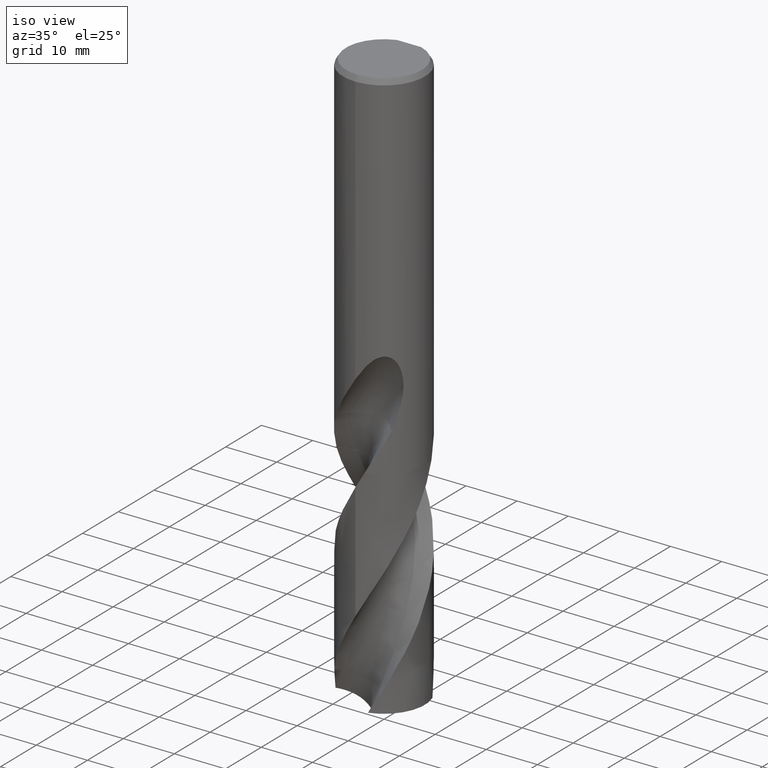
[diagram: clean part render]
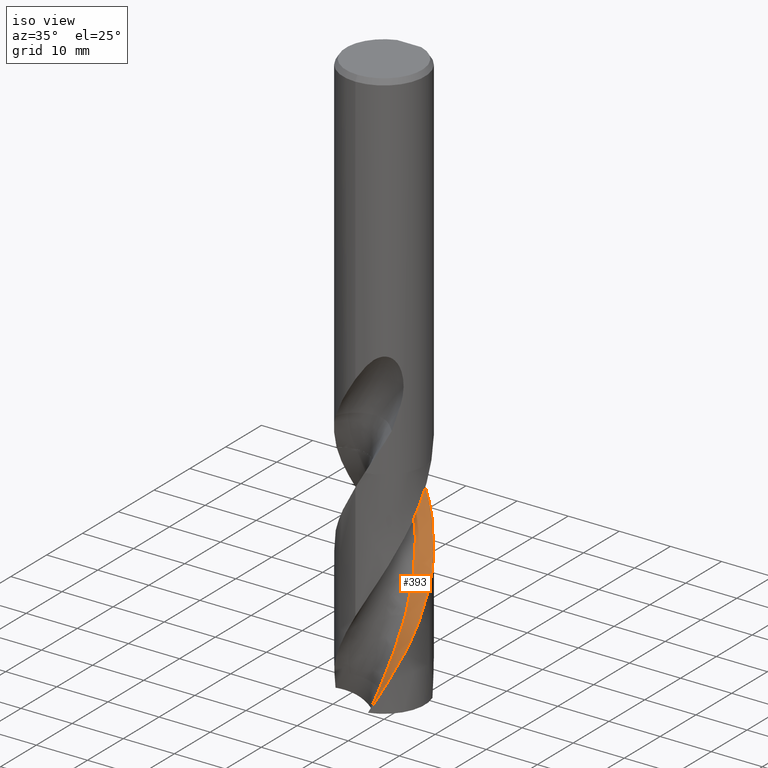
[diagram: same view with one face highlighted and labeled with its STEP entity id]
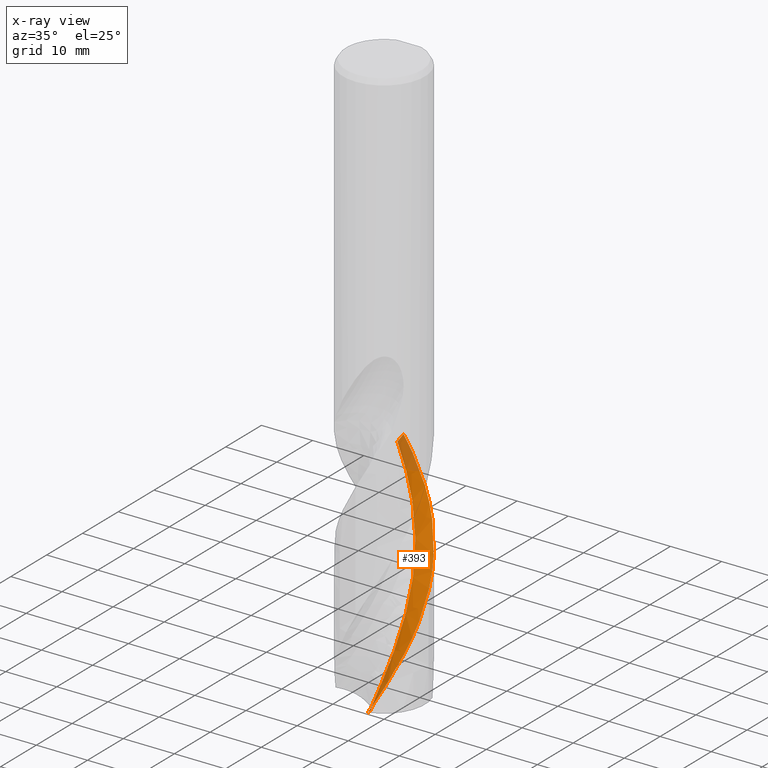
[diagram: x-ray of the same camera — body ghosted, the highlighted face saturated]
A machine part, iso view. The second image highlights one B-rep face of the part: STEP entity #393.
The next image is the same camera in x-ray: the body ghosted, the highlighted face saturated — about 10% of this face is hidden behind the body in this view.
In plain terms, the highlighted face is a freeform B-spline surface patch.
Its self-contained STEP definition (entity closure, byte-faithful):
#295=EDGE_CURVE('',#629,#737,#812,.T.);
#365=EDGE_CURVE('',#729,#629,#890,.T.);
#393=ADVANCED_FACE('',(#921),#922,.F.);
#481=VERTEX_POINT('',#1018);
#485=VERTEX_POINT('',#1023);
#507=EDGE_CURVE('',#485,#729,#1046,.T.);
#537=EDGE_CURVE('',#481,#485,#1077,.T.);
#629=VERTEX_POINT('',#1178);
#639=EDGE_CURVE('',#481,#737,#1188,.T.);
#729=VERTEX_POINT('',#1286);
#737=VERTEX_POINT('',#1295);
#812=B_SPLINE_CURVE_WITH_KNOTS('',3,(#1379,#1380,#1381,#1382),.UNSPECIFIED.,.F.,.F.,(4,4),(0.0,6.93095966099131),.UNSPECIFIED.);
#890=B_SPLINE_CURVE_WITH_KNOTS('',3,(#2726,#2727,#2728,#2729,#2730,#2731,#2732,#2733,#2734,#2735,#2736,#2737,#2738,#2739,#2740,#2741,#2742,#2743,#2744,#2745,#2746,#2747,#2748,#2749,#2750,#2751,#2752,#2753,#2754,#2755,#2756,#2757,#2758,#2759,#2760,#2761,#2762,#2763,#2764,#2765,#2766,#2767,#2768,#2769,#2770,#2771,#2772,#2773,#2774,#2775,#2776,#2777),.UNSPECIFIED.,.F.,.F.,(4,2,2,2,2,2,2,2,2,2,2,2,2,2,2,2,2,2,2,2,2,2,2,2,2,4),(0.0,1.27051730286432,3.96646854480239,5.51157217282943,7.05404440528282,10.1371378918844,10.3290807501614,13.4034358372347,14.9439217900769,17.8075973009075,17.9859906336772,20.8432027542659,22.2753112592827,25.1362857660209,25.8509122014461,28.7245608353295,29.9842632062922,32.3474459365253,34.4169737224137,36.2289984814503,37.8143179372547,40.5895410475255,41.1098273184683,43.0617453367982,45.9921869063749,48.9211548549457),.UNSPECIFIED.);
#921=FACE_OUTER_BOUND('',#3036,.T.);
#922=B_SPLINE_SURFACE_WITH_KNOTS('',3,3,((#3037,#3038,#3039,#3040,#3041,#3042,#3043,#3044,#3045,#3046,#3047,#3048,#3049,#3050,#3051,#3052,#3053,#3054,#3055,#3056,#3057,#3058,#3059,#3060,#3061,#3062,#3063,#3064,#3065,#3066,#3067,#3068,#3069,#3070,#3071,#3072,#3073,#3074,#3075,#3076,#3077,#3078,#3079,#3080),(#3081,#3082,#3083,#3084,#3085,#3086,#3087,#3088,#3089,#3090,#3091,#3092,#3093,#3094,#3095,#3096,#3097,#3098,#3099,#3100,#3101,#3102,#3103,#3104,#3105,#3106,#3107,#3108,#3109,#3110,#3111,#3112,#3113,#3114,#3115,#3116,#3117,#3118,#3119,#3120,#3121,#3122,#3123,#3124),(#3125,#3126,#3127,#3128,#3129,#3130,#3131,#3132,#3133,#3134,#3135,#3136,#3137,#3138,#3139,#3140,#3141,#3142,#3143,#3144,#3145,#3146,#3147,#3148,#3149,#3150,#3151,#3152,#3153,#3154,#3155,#3156,#3157,#3158,#3159,#3160,#3161,#3162,#3163,#3164,#3165,#3166,#3167,#3168),(#3169,#3170,#3171,#3172,#3173,#3174,#3175,#3176,#3177,#3178,#3179,#3180,#3181,#3182,#3183,#3184,#3185,#3186,#3187,#3188,#3189,#3190,#3191,#3192,#3193,#3194,#3195,#3196,#3197,#3198,#3199,#3200,#3201,#3202,#3203,#3204,#3205,#3206,#3207,#3208,#3209,#3210,#3211,#3212)),.UNSPECIFIED.,.F.,.F.,.F.,(4,4),(4,1,2,2,2,2,2,2,2,2,2,2,2,2,2,2,2,2,2,2,1,2,4),(-5.42813949171161E-015,10.66666667),(0.0,1.06461880689697,2.12923761379393,3.1938564206909,4.25847522758786,6.38771284138179,8.51695045517572,10.6461880689697,12.7754256827636,17.0339009103514,21.2923761379393,25.5508513655272,29.809326593115,34.0678018207029,38.3262770482907,42.5847522758786,46.8432275034665,51.1017027310543,55.3601779586422,59.61865318623,63.8771284138179,66.0063660276118,68.1356036414058),.UNSPECIFIED.);
#1018=CARTESIAN_POINT('',(-0.841475625402543,4.95653405970587,-69.805));
#1023=CARTESIAN_POINT('',(-1.67697244394199,7.82215850142622,-69.8049999999999));
#1046=B_SPLINE_CURVE_WITH_KNOTS('',3,(#3846,#3847,#3848,#3849,#3850,#3851,#3852,#3853,#3854,#3855,#3856,#3857,#3858,#3859,#3860,#3861,#3862,#3863,#3864,#3865,#3866,#3867,#3868,#3869,#3870,#3871,#3872,#3873,#3874,#3875,#3876,#3877,#3878,#3879,#3880,#3881,#3882,#3883,#3884,#3885,#3886,#3887,#3888,#3889,#3890,#3891,#3892,#3893,#3894,#3895,#3896,#3897),.UNSPECIFIED.,.F.,.F.,(4,2,2,2,2,2,2,2,2,2,2,2,2,2,2,2,2,2,2,2,2,2,2,2,2,4),(0.0,1.27051730286432,3.96646854480239,5.51157217282943,7.05404440528282,10.1371378918844,10.3290807501614,13.4034358372347,14.9439217900769,17.8075973009075,17.9859906336772,20.8432027542659,22.2753112592827,25.1362857660209,25.8509122014461,28.7245608353295,29.9842632062922,32.3474459365253,34.4169737224137,36.2289984814503,37.8143179372547,40.5895410475255,41.1098273184683,43.0617453367982,45.9921869063749,48.9211548549457),.UNSPECIFIED.);
#1077=B_SPLINE_CURVE_WITH_KNOTS('',3,(#4002,#4003,#4004,#4005,#4006,#4007),.UNSPECIFIED.,.F.,.F.,(4,2,4),(-10.6663058894627,-5.33315363385456,-0.0),.UNSPECIFIED.);
#1178=CARTESIAN_POINT('',(2.24355385134962,-7.67896256769717,-112.08823812587));
#1188=B_SPLINE_CURVE_WITH_KNOTS('',3,(#5321,#5322,#5323,#5324,#5325,#5326,#5327,#5328,#5329,#5330,#5331,#5332,#5333,#5334,#5335,#5336,#5337,#5338,#5339,#5340,#5341,#5342,#5343,#5344,#5345,#5346,#5347,#5348,#5349,#5350,#5351,#5352,#5353,#5354,#5355,#5356,#5357,#5358,#5359,#5360,#5361,#5362,#5363),.UNSPECIFIED.,.F.,.F.,(4,1,2,2,2,2,2,2,1,2,2,2,2,2,2,2,2,2,2,2,1,2,4),(0.0,1.06461880689697,2.12923761379393,3.1938564206909,4.25847522758786,6.38771284138179,8.51695045517572,10.6461880689697,12.7754256827636,17.0339009103514,21.2923761379393,25.5508513655272,29.809326593115,34.0678018207029,38.3262770482907,42.5847522758786,46.8432275034665,51.1017027310543,55.3601779586422,59.61865318623,63.8771284138179,66.0063660276118,68.1356036414058),.UNSPECIFIED.);
#1286=CARTESIAN_POINT('',(5.72739119061951E-015,7.99990689616698,-72.7162675143948));
#1295=CARTESIAN_POINT('',(0.825038306277627,-4.97440358064605,-113.164731597398));
#1379=CARTESIAN_POINT('',(4.32954534470303,-10.4525134349668,-110.882146867205));
#1380=CARTESIAN_POINT('',(2.87540213586696,-8.8218050356489,-111.633036755833));
#1381=CARTESIAN_POINT('',(1.68208019126899,-6.97525345287686,-112.395256562736));
#1382=CARTESIAN_POINT('',(0.825038306372377,-4.974403580619,-113.164731597402));
#2726=CARTESIAN_POINT('',(-1.67849383798376,7.82183217243396,-69.8023225095045));
#2727=CARTESIAN_POINT('',(-1.4704371492189,7.86648012565926,-70.1684865570865));
#2728=CARTESIAN_POINT('',(-1.26086920143506,7.90276883897967,-70.5348819784031));
#2729=CARTESIAN_POINT('',(-0.603475236507624,7.98983352343572,-71.6782461498771));
#2730=CARTESIAN_POINT('',(-0.152242433013857,8.01117034564737,-72.4537500739582));
#2731=CARTESIAN_POINT('',(0.556961162588771,7.98468489946156,-73.6758638894698));
#2732=CARTESIAN_POINT('',(0.81472088483901,7.96251524980937,-74.1206847396728));
#2733=CARTESIAN_POINT('',(1.3267594956836,7.89334749033179,-75.0104099080499));
#2734=CARTESIAN_POINT('',(1.58068031788886,7.84644088291161,-75.4546065332027));
#2735=CARTESIAN_POINT('',(2.33385367731438,7.66927345604132,-76.7877371405339));
#2736=CARTESIAN_POINT('',(2.82341210749603,7.50288497591098,-77.6743698086454));
#2737=CARTESIAN_POINT('',(3.32291312463908,7.27722570277805,-78.6181108935414));
#2738=CARTESIAN_POINT('',(3.35210599830845,7.26382495392821,-78.673416650395));
#2739=CARTESIAN_POINT('',(3.8475102580408,7.03279119579346,-79.614709280393));
#2740=CARTESIAN_POINT('',(4.2917607497998,6.77084315983122,-80.4994487472376));
#2741=CARTESIAN_POINT('',(4.9161968868441,6.31635410265131,-81.8294598761166));
#2742=CARTESIAN_POINT('',(5.11715150864102,6.15467777257267,-82.2730724607415));
#2743=CARTESIAN_POINT('',(5.66828082201436,5.66560315823584,-83.5425205479753));
#2744=CARTESIAN_POINT('',(5.99741965364389,5.31597969596658,-84.3663396379129));
#2745=CARTESIAN_POINT('',(6.31176264142755,4.915437740202,-85.2430665309164));
#2746=CARTESIAN_POINT('',(6.33006359566202,4.89184756203063,-85.2944761180623));
#2747=CARTESIAN_POINT('',(6.63923196268416,4.48868534906526,-86.1694017419798));
#2748=CARTESIAN_POINT('',(6.89563558934732,4.08386508873248,-86.9919623199943));
#2749=CARTESIAN_POINT('',(7.22395989720431,3.44542519548851,-88.2282989020718));
#2750=CARTESIAN_POINT('',(7.32393190888616,3.22747062102742,-88.6407038211166));
#2751=CARTESIAN_POINT('',(7.59382243644842,2.56168501043691,-89.8782330733037));
#2752=CARTESIAN_POINT('',(7.73351929852918,2.10266927620526,-90.7015883078468));
#2753=CARTESIAN_POINT('',(7.85576082746143,1.51676008798964,-91.7322180976283));
#2754=CARTESIAN_POINT('',(7.87756009486117,1.39913887136389,-91.9381308903172));
#2755=CARTESIAN_POINT('',(7.97373244040805,0.806337042298322,-92.9725083487111));
#2756=CARTESIAN_POINT('',(8.00779074699412,0.325559950217122,-93.7997280737574));
#2757=CARTESIAN_POINT('',(7.9943547240745,-0.366211538356224,-94.9912166158297));
#2758=CARTESIAN_POINT('',(7.98192667129978,-0.576764012981701,-95.3540876027758));
#2759=CARTESIAN_POINT('',(7.92231727501749,-1.18012940022822,-96.3985480993691));
#2760=CARTESIAN_POINT('',(7.85429732890172,-1.57032906102446,-97.0791517982732));
#2761=CARTESIAN_POINT('',(7.67306861206464,-2.28987151403489,-98.3570025762126));
#2762=CARTESIAN_POINT('',(7.56673763753815,-2.61991000108871,-98.9528534196423));
#2763=CARTESIAN_POINT('',(7.3278637033378,-3.22395897252188,-100.071938681329));
#2764=CARTESIAN_POINT('',(7.20038873587797,-3.49942582832175,-100.593964426066));
#2765=CARTESIAN_POINT('',(6.9325893795096,-4.00115444396327,-101.57334118483));
#2766=CARTESIAN_POINT('',(6.79607239350315,-4.22887811731923,-102.02990977461));
#2767=CARTESIAN_POINT('',(6.3902009316168,-4.83536064456716,-103.287106747562));
#2768=CARTESIAN_POINT('',(6.09871598664392,-5.19819444686474,-104.085881652984));
#2769=CARTESIAN_POINT('',(5.71708612267639,-5.59662813284819,-105.035917625444));
#2770=CARTESIAN_POINT('',(5.65581758483874,-5.65853792326001,-105.185877281304));
#2771=CARTESIAN_POINT('',(5.35995788213228,-5.9478883358092,-105.898625423372));
#2772=CARTESIAN_POINT('',(5.11258122289744,-6.16182298630118,-106.461102687264));
#2773=CARTESIAN_POINT('',(4.46283272782344,-6.65759718653386,-107.868735786888));
#2774=CARTESIAN_POINT('',(4.04639222723573,-6.91859864991595,-108.711219138915));
#2775=CARTESIAN_POINT('',(3.17139742994246,-7.36086665146706,-110.400814118732));
#2776=CARTESIAN_POINT('',(2.71441280435184,-7.54139015727414,-111.243925128172));
#2777=CARTESIAN_POINT('',(2.24355385134965,-7.67896256769718,-112.08823812587));
#3036=EDGE_LOOP('',(#7691,#7692,#7693,#7694,#7695));
#3037=CARTESIAN_POINT('',(-3.77123616397123,3.96209716602877,-62.101));
#3038=CARTESIAN_POINT('',(-3.54812235031376,3.94967617031908,-62.3762101685923));
#3039=CARTESIAN_POINT('',(-3.15634081664146,3.95299702080906,-62.9259449280034));
#3040=CARTESIAN_POINT('',(-2.87433953225825,4.00666304207339,-63.4743084639425));
#3041=CARTESIAN_POINT('',(-2.6461973593676,4.08665551285039,-64.0228458753513));
#3042=CARTESIAN_POINT('',(-2.56281468775398,4.14196627365294,-64.2972796018233));
#3043=CARTESIAN_POINT('',(-2.44982630826526,4.28724260382251,-64.8493057588046));
#3044=CARTESIAN_POINT('',(-2.39103191258959,4.35811627733871,-65.125835899249));
#3045=CARTESIAN_POINT('',(-2.2076159318124,4.56491825224735,-65.9569650665982));
#3046=CARTESIAN_POINT('',(-2.0393743345678,4.66597627122738,-66.510785515463));
#3047=CARTESIAN_POINT('',(-1.64386002338051,4.79135151307099,-67.6116680694692));
#3048=CARTESIAN_POINT('',(-1.44198661432041,4.84185446635633,-68.1618238714774));
#3049=CARTESIAN_POINT('',(-1.03645753754127,4.92210445353867,-69.2615316824631));
#3050=CARTESIAN_POINT('',(-0.837761264250245,4.95826179309784,-69.8120843794593));
#3051=CARTESIAN_POINT('',(-0.44628918775512,5.02325796296316,-70.9159801340602));
#3052=CARTESIAN_POINT('',(-0.245637416157585,5.03902597065307,-71.4676401613048));
#3053=CARTESIAN_POINT('',(0.358913091188491,5.04427564867237,-73.1209923471619));
#3054=CARTESIAN_POINT('',(0.763930897453551,4.99367347255854,-74.2225547349237));
#3055=CARTESIAN_POINT('',(1.54730116036635,4.81477280449331,-76.4272302683867));
#3056=CARTESIAN_POINT('',(1.92887185321822,4.66861976130294,-77.529484824607));
#3057=CARTESIAN_POINT('',(2.64736079402494,4.30915090606337,-79.7338787306832));
#3058=CARTESIAN_POINT('',(2.98329952705697,4.07671563842462,-80.8360996273275));
#3059=CARTESIAN_POINT('',(3.59563511767368,3.55640789344524,-83.0405591656441));
#3060=CARTESIAN_POINT('',(3.8666499958991,3.25067964831141,-84.1427826617067));
#3061=CARTESIAN_POINT('',(4.3378197952935,2.59980635725576,-86.3472226072785));
#3062=CARTESIAN_POINT('',(4.52843218074037,2.23846034533275,-87.4494442412295));
#3063=CARTESIAN_POINT('',(4.83142996309516,1.49427806235517,-89.6538933683758));
#3064=CARTESIAN_POINT('',(4.93072451469783,1.09800692490497,-90.7561144179668));
#3065=CARTESIAN_POINT('',(5.0482848449925,0.303212663265636,-92.9605596945444));
#3066=CARTESIAN_POINT('',(5.0505479771595,-0.105308640692642,-94.0627827367151));
#3067=CARTESIAN_POINT('',(4.97570105724168,-0.905309071904554,-96.267223084823));
#3068=CARTESIAN_POINT('',(4.88075196599052,-1.30267026594633,-97.3694497645282));
#3069=CARTESIAN_POINT('',(4.61780576746592,-2.06196843248083,-99.573900714131));
#3070=CARTESIAN_POINT('',(4.43113817162071,-2.42537213048269,-100.676114150396));
#3071=CARTESIAN_POINT('',(3.99542473525094,-3.10043934319891,-102.880535496905));
#3072=CARTESIAN_POINT('',(3.72775696648194,-3.40907906752479,-103.982771959711));
#3073=CARTESIAN_POINT('',(3.14372806924462,-3.96112957359504,-106.187312343327));
#3074=CARTESIAN_POINT('',(2.81054060774937,-4.19736235489141,-107.289517565998));
#3075=CARTESIAN_POINT('',(2.11377269632225,-4.59595526630952,-109.493803439503));
#3076=CARTESIAN_POINT('',(1.54200548417601,-4.81935735586111,-111.147495518714));
#3077=CARTESIAN_POINT('',(0.954706422116158,-4.95091978046888,-112.799317884973));
#3078=CARTESIAN_POINT('',(0.563903055830372,-5.02262892125783,-113.900561545353));
#3079=CARTESIAN_POINT('',(0.357103587994685,-5.03187920097558,-114.451766543886));
#3080=CARTESIAN_POINT('',(0.144778706601779,-5.01586670206104,-115.002369398298));
#3081=CARTESIAN_POINT('',(-6.28539360900504,6.47625461106258,-62.101));
#3082=CARTESIAN_POINT('',(-6.06208053892829,6.46403275970445,-62.3762152956908));
#3083=CARTESIAN_POINT('',(-5.65097191316986,6.48689609937164,-62.9249125025823));
#3084=CARTESIAN_POINT('',(-5.31026104301992,6.59726764487364,-63.4708245296758));
#3085=CARTESIAN_POINT('',(-5.00142808919491,6.75082764769712,-64.0172241931509));
#3086=CARTESIAN_POINT('',(-4.86532468713152,6.85263393692826,-64.2908076670695));
#3087=CARTESIAN_POINT('',(-4.6191404516171,7.10563828380499,-64.8435854622984));
#3088=CARTESIAN_POINT('',(-4.49162239405506,7.22811511346965,-65.1208772166388));
#3089=CARTESIAN_POINT('',(-4.09605648988905,7.5824406912821,-65.9555208839525));
#3090=CARTESIAN_POINT('',(-3.79526997876399,7.76073505625033,-66.5114913328482));
#3091=CARTESIAN_POINT('',(-3.15672738705905,8.01189870147513,-67.6113191054043));
#3092=CARTESIAN_POINT('',(-2.83016761515817,8.11808574173966,-68.1607175238215));
#3093=CARTESIAN_POINT('',(-2.16848533390128,8.29541686325693,-69.2584350119689));
#3094=CARTESIAN_POINT('',(-1.83501136709279,8.37419663790827,-69.808545846319));
#3095=CARTESIAN_POINT('',(-1.16121872004706,8.50922930986571,-70.9137666897286));
#3096=CARTESIAN_POINT('',(-0.819484375302748,8.55085165943514,-71.4658598207489));
#3097=CARTESIAN_POINT('',(0.208744002933987,8.60803666021977,-73.1192267995459));
#3098=CARTESIAN_POINT('',(0.897742863757718,8.55817967489598,-74.2202667170442));
#3099=CARTESIAN_POINT('',(2.24858644337815,8.31217105859059,-76.4251251450382));
#3100=CARTESIAN_POINT('',(2.90585684227095,8.09924439150843,-77.5274061140863));
#3101=CARTESIAN_POINT('',(4.15986097010315,7.53963333366588,-79.7317569861552));
#3102=CARTESIAN_POINT('',(4.74779428205999,7.17674569402841,-80.8339783278526));
#3103=CARTESIAN_POINT('',(5.83258141160778,6.33484301930183,-83.0384486246711));
#3104=CARTESIAN_POINT('',(6.31733417701926,5.84254974894414,-84.1406748991873));
#3105=CARTESIAN_POINT('',(7.17100726772225,4.76698908090956,-86.3451076724246));
#3106=CARTESIAN_POINT('',(7.52490357650783,4.17361180496266,-87.4473300728039));
#3107=CARTESIAN_POINT('',(8.09851354152724,2.92598901507824,-89.6517827861175));
#3108=CARTESIAN_POINT('',(8.30127236899744,2.26551258525363,-90.7540044666704));
#3109=CARTESIAN_POINT('',(8.56204808255216,0.917319816924052,-92.9584461570808));
#3110=CARTESIAN_POINT('',(8.60200459760752,0.227568778125884,-94.060669855593));
#3111=CARTESIAN_POINT('',(8.53472986989346,-1.14395106302307,-96.2651102037009));
#3112=CARTESIAN_POINT('',(8.40955636083452,-1.82341926486078,-97.367336033681));
#3113=CARTESIAN_POINT('',(8.01814378851521,-3.1396151408053,-99.5717941556184));
#3114=CARTESIAN_POINT('',(7.73507628899973,-3.76986023462167,-100.674005809106));
#3115=CARTESIAN_POINT('',(7.04219162491667,-4.95539325593887,-102.878405638611));
#3116=CARTESIAN_POINT('',(6.61745267146047,-5.50031646090952,-103.980658076375));
#3117=CARTESIAN_POINT('',(5.66239173548942,-6.48698354460477,-106.185241493999));
#3118=CARTESIAN_POINT('',(5.12043501187556,-6.91549678386221,-107.287404117266));
#3119=CARTESIAN_POINT('',(3.95920912837608,-7.64853206929463,-109.491582405752));
#3120=CARTESIAN_POINT('',(3.01573949605778,-8.07684241925739,-111.145628001105));
#3121=CARTESIAN_POINT('',(2.02104226406593,-8.34590942122795,-112.797214528234));
#3122=CARTESIAN_POINT('',(1.35006285526071,-8.49321586474173,-113.898268121748));
#3123=CARTESIAN_POINT('',(1.00815793539206,-8.52977620451577,-114.449806162979));
#3124=CARTESIAN_POINT('',(0.666150521226884,-8.53298802769184,-115.000288880787));
#3125=CARTESIAN_POINT('',(-8.79955105395094,8.99041205600849,-62.101));
#3126=CARTESIAN_POINT('',(-8.5760389663989,8.97838933419338,-62.3762205213869));
#3127=CARTESIAN_POINT('',(-8.14560273976516,9.02079523047724,-62.9238800663563));
#3128=CARTESIAN_POINT('',(-7.74618285437835,9.18787215724545,-63.4673405185534));
#3129=CARTESIAN_POINT('',(-7.35665851840539,9.41499987267791,-64.0116025877578));
#3130=CARTESIAN_POINT('',(-7.16783463285769,9.56330179339187,-64.2843356817275));
#3131=CARTESIAN_POINT('',(-6.78845464832878,9.92403377040501,-64.8378652163646));
#3132=CARTESIAN_POINT('',(-6.59221252421563,10.0981135121579,-65.1159185345376));
#3133=CARTESIAN_POINT('',(-5.98449775003298,10.5999640047635,-65.95407670042));
#3134=CARTESIAN_POINT('',(-5.55116593948011,10.8554932416165,-66.5121967442281));
#3135=CARTESIAN_POINT('',(-4.66959443421795,11.2324464893399,-67.6109705473246));
#3136=CARTESIAN_POINT('',(-4.21834932516335,11.3943165135501,-68.1596112670256));
#3137=CARTESIAN_POINT('',(-3.30051242128085,11.6687297763112,-69.2553382506537));
#3138=CARTESIAN_POINT('',(-2.83226224737157,11.7901314979118,-69.8050088777768));
#3139=CARTESIAN_POINT('',(-1.87614747490966,11.9952006413026,-70.9115516810655));
#3140=CARTESIAN_POINT('',(-1.39333056499638,12.0626776643768,-71.4640798278254));
#3141=CARTESIAN_POINT('',(0.0585733758145426,12.1717970393544,-73.1174605568114));
#3142=CARTESIAN_POINT('',(1.03155426058286,12.1226860842506,-74.217978652067));
#3143=CARTESIAN_POINT('',(2.94987229579112,11.8095691054368,-76.4230200688746));
#3144=CARTESIAN_POINT('',(3.88284283415433,11.5298672831662,-77.5253252189854));
#3145=CARTESIAN_POINT('',(5.67236014348664,10.7701174996218,-79.7296374257832));
#3146=CARTESIAN_POINT('',(6.51229056943666,10.2767773229127,-80.8318558965668));
#3147=CARTESIAN_POINT('',(8.06952617313189,9.11327657188704,-83.0363392157112));
#3148=CARTESIAN_POINT('',(8.76801906842714,8.43441916098254,-84.1385641043894));
#3149=CARTESIAN_POINT('',(10.0041940296749,6.93417249320047,-86.3429957697364));
#3150=CARTESIAN_POINT('',(10.5213738807585,6.10876288940463,-87.4452146938434));
#3151=CARTESIAN_POINT('',(11.3655982113298,4.35770034286888,-89.6496734142785));
#3152=CARTESIAN_POINT('',(11.6718225470281,3.43301719785983,-90.7518900817388));
#3153=CARTESIAN_POINT('',(12.075808996372,1.53142801817642,-92.9563370527805));
#3154=CARTESIAN_POINT('',(12.1534603704332,0.560447828067199,-94.0585602808665));
#3155=CARTESIAN_POINT('',(12.093759529943,-1.38259468505192,-96.2629940164406));
#3156=CARTESIAN_POINT('',(11.9383589012543,-2.34416785139826,-97.3652201935071));
#3157=CARTESIAN_POINT('',(11.4184836637135,-4.21726226146104,-99.5696897065687));
#3158=CARTESIAN_POINT('',(11.0390128123258,-5.11434779438389,-100.671895550247));
#3159=CARTESIAN_POINT('',(10.0889601082849,-6.81034771279681,-102.876277698065));
#3160=CARTESIAN_POINT('',(9.50714685888233,-7.59155405979011,-103.978543284089));
#3161=CARTESIAN_POINT('',(8.18105691912334,-9.01283730989904,-106.183171553526));
#3162=CARTESIAN_POINT('',(7.43032666101346,-9.63363130756503,-107.285292538698));
#3163=CARTESIAN_POINT('',(5.80464831501027,-10.7011087772449,-109.489359502242));
#3164=CARTESIAN_POINT('',(4.48947286012687,-11.3343273485607,-111.143758980117));
#3165=CARTESIAN_POINT('',(3.08737806503497,-11.740899219572,-112.795113142042));
#3166=CARTESIAN_POINT('',(2.13622269562274,-11.9638026504484,-113.895972728289));
#3167=CARTESIAN_POINT('',(1.65921235611048,-12.027673400408,-114.447851215481));
#3168=CARTESIAN_POINT('',(1.18752233584683,-12.0501093531944,-114.998208363093));
#3169=CARTESIAN_POINT('',(-11.3137084989848,11.5045695010423,-62.101));
#3170=CARTESIAN_POINT('',(-11.0899971550134,11.4927460356465,-62.3762255644347));
#3171=CARTESIAN_POINT('',(-10.6402338923274,11.554694253006,-62.9228476689521));
#3172=CARTESIAN_POINT('',(-10.1821042530723,11.7784767600457,-63.4638566123036));
#3173=CARTESIAN_POINT('',(-9.71188936030043,12.0791720075246,-64.0059808775404));
#3174=CARTESIAN_POINT('',(-9.47034496843841,12.2739694566672,-64.2778639150753));
#3175=CARTESIAN_POINT('',(-8.95776845547744,12.7424294503875,-64.8321447517568));
#3176=CARTESIAN_POINT('',(-8.69280311774883,12.968112684492,-65.1109597958935));
#3177=CARTESIAN_POINT('',(-7.87293808397417,13.6174857713919,-65.9526326298421));
#3178=CARTESIAN_POINT('',(-7.30706113540538,13.9502515783685,-66.5129025616133));
#3179=CARTESIAN_POINT('',(-6.18246224616739,14.4529941260149,-67.6106215832597));
#3180=CARTESIAN_POINT('',(-5.60653055013657,14.6705477889334,-68.1585046952342));
#3181=CARTESIAN_POINT('',(-4.43253999350541,15.0420421860295,-69.252241804295));
#3182=CARTESIAN_POINT('',(-3.82951257434958,15.2060661185868,-69.8014707929075));
#3183=CARTESIAN_POINT('',(-2.59107678306614,15.4811722123406,-70.9093377884629));
#3184=CARTESIAN_POINT('',(-1.96717752414154,15.574502904888,-71.4622994872694));
#3185=CARTESIAN_POINT('',(-0.0915957124399607,15.7355589474436,-73.1156950091955));
#3186=CARTESIAN_POINT('',(1.16536577861612,15.6871913900463,-74.2156915307293));
#3187=CARTESIAN_POINT('',(3.65115802707383,15.3069682560759,-76.4209140489843));
#3188=CARTESIAN_POINT('',(4.85982916801979,14.9604928099135,-77.523244715381));
#3189=CARTESIAN_POINT('',(7.18485897475212,14.0005990306825,-79.7275174743388));
#3190=CARTESIAN_POINT('',(8.2767866692524,13.3768073785165,-80.829734597092));
#3191=CARTESIAN_POINT('',(10.3064711222533,11.8917116977436,-83.0342286747382));
#3192=CARTESIAN_POINT('',(11.2187028012764,11.0262897098862,-84.1364545487864));
#3193=CARTESIAN_POINT('',(12.8373819503745,9.10135476858337,-86.3408826279661));
#3194=CARTESIAN_POINT('',(13.5178443799842,8.04391434903455,-87.4431023185014));
#3195=CARTESIAN_POINT('',(14.6326826863037,5.78941129559195,-89.6475610389365));
#3196=CARTESIAN_POINT('',(15.0423704013277,4.60052240993757,-90.7497783373588));
#3197=CARTESIAN_POINT('',(15.5895722339317,2.14553562010574,-92.9542253084004));
#3198=CARTESIAN_POINT('',(15.7049169908812,0.893325695156635,-94.0564509859118));
#3199=CARTESIAN_POINT('',(15.6527883425948,-1.62123712444135,-96.2608775491513));
#3200=CARTESIAN_POINT('',(15.4671637443692,-2.8649164020418,-97.3631100488272));
#3201=CARTESIAN_POINT('',(14.8188212364918,-5.29490941805641,-99.5675795618888));
#3202=CARTESIAN_POINT('',(14.3429527227884,-6.45883545025195,-100.669780036622));
#3203=CARTESIAN_POINT('',(13.135725204867,-8.66530207380768,-102.874155012106));
#3204=CARTESIAN_POINT('',(12.3968434604027,-9.68279234971667,-103.976425814586));
#3205=CARTESIAN_POINT('',(10.6997196888263,-11.5386903843669,-106.181104290364));
#3206=CARTESIAN_POINT('',(9.7402233064942,-12.3517675296195,-107.283179089966));
#3207=CARTESIAN_POINT('',(7.65008250570955,-13.7536837871464,-109.487138468491));
#3208=CARTESIAN_POINT('',(5.96320720821182,-14.5918128602279,-111.141891462508));
#3209=CARTESIAN_POINT('',(4.1537141311202,-15.1358888603311,-112.793009785303));
#3210=CARTESIAN_POINT('',(2.92238227091763,-15.4343895939323,-113.893679304684));
#3211=CARTESIAN_POINT('',(2.31026670350785,-15.5255706280836,-114.445894420741));
#3212=CARTESIAN_POINT('',(1.70889415047194,-15.5672306788252,-114.996127845582));
#3846=CARTESIAN_POINT('',(-1.67849383798376,7.82183217243396,-69.8023225095045));
#3847=CARTESIAN_POINT('',(-1.4704371492189,7.86648012565926,-70.1684865570865));
#3848=CARTESIAN_POINT('',(-1.26086920143506,7.90276883897967,-70.5348819784031));
#3849=CARTESIAN_POINT('',(-0.603475236507624,7.98983352343572,-71.6782461498771));
#3850=CARTESIAN_POINT('',(-0.152242433013857,8.01117034564737,-72.4537500739582));
#3851=CARTESIAN_POINT('',(0.556961162588771,7.98468489946156,-73.6758638894698));
#3852=CARTESIAN_POINT('',(0.81472088483901,7.96251524980937,-74.1206847396728));
#3853=CARTESIAN_POINT('',(1.3267594956836,7.89334749033179,-75.0104099080499));
#3854=CARTESIAN_POINT('',(1.58068031788886,7.84644088291161,-75.4546065332027));
#3855=CARTESIAN_POINT('',(2.33385367731438,7.66927345604132,-76.7877371405339));
#3856=CARTESIAN_POINT('',(2.82341210749603,7.50288497591098,-77.6743698086454));
#3857=CARTESIAN_POINT('',(3.32291312463908,7.27722570277805,-78.6181108935414));
#3858=CARTESIAN_POINT('',(3.35210599830845,7.26382495392821,-78.673416650395));
#3859=CARTESIAN_POINT('',(3.8475102580408,7.03279119579346,-79.614709280393));
#3860=CARTESIAN_POINT('',(4.2917607497998,6.77084315983122,-80.4994487472376));
#3861=CARTESIAN_POINT('',(4.9161968868441,6.31635410265131,-81.8294598761166));
#3862=CARTESIAN_POINT('',(5.11715150864102,6.15467777257267,-82.2730724607415));
#3863=CARTESIAN_POINT('',(5.66828082201436,5.66560315823584,-83.5425205479753));
#3864=CARTESIAN_POINT('',(5.99741965364389,5.31597969596658,-84.3663396379129));
#3865=CARTESIAN_POINT('',(6.31176264142755,4.915437740202,-85.2430665309164));
#3866=CARTESIAN_POINT('',(6.33006359566202,4.89184756203063,-85.2944761180623));
#3867=CARTESIAN_POINT('',(6.63923196268416,4.48868534906526,-86.1694017419798));
#3868=CARTESIAN_POINT('',(6.89563558934732,4.08386508873248,-86.9919623199943));
#3869=CARTESIAN_POINT('',(7.22395989720431,3.44542519548851,-88.2282989020718));
#3870=CARTESIAN_POINT('',(7.32393190888616,3.22747062102742,-88.6407038211166));
#3871=CARTESIAN_POINT('',(7.59382243644842,2.56168501043691,-89.8782330733037));
#3872=CARTESIAN_POINT('',(7.73351929852918,2.10266927620526,-90.7015883078468));
#3873=CARTESIAN_POINT('',(7.85576082746143,1.51676008798964,-91.7322180976283));
#3874=CARTESIAN_POINT('',(7.87756009486117,1.39913887136389,-91.9381308903172));
#3875=CARTESIAN_POINT('',(7.97373244040805,0.806337042298322,-92.9725083487111));
#3876=CARTESIAN_POINT('',(8.00779074699412,0.325559950217122,-93.7997280737574));
#3877=CARTESIAN_POINT('',(7.9943547240745,-0.366211538356224,-94.9912166158297));
#3878=CARTESIAN_POINT('',(7.98192667129978,-0.576764012981701,-95.3540876027758));
#3879=CARTESIAN_POINT('',(7.92231727501749,-1.18012940022822,-96.3985480993691));
#3880=CARTESIAN_POINT('',(7.85429732890172,-1.57032906102446,-97.0791517982732));
#3881=CARTESIAN_POINT('',(7.67306861206464,-2.28987151403489,-98.3570025762126));
#3882=CARTESIAN_POINT('',(7.56673763753815,-2.61991000108871,-98.9528534196423));
#3883=CARTESIAN_POINT('',(7.3278637033378,-3.22395897252188,-100.071938681329));
#3884=CARTESIAN_POINT('',(7.20038873587797,-3.49942582832175,-100.593964426066));
#3885=CARTESIAN_POINT('',(6.9325893795096,-4.00115444396327,-101.57334118483));
#3886=CARTESIAN_POINT('',(6.79607239350315,-4.22887811731923,-102.02990977461));
#3887=CARTESIAN_POINT('',(6.3902009316168,-4.83536064456716,-103.287106747562));
#3888=CARTESIAN_POINT('',(6.09871598664392,-5.19819444686474,-104.085881652984));
#3889=CARTESIAN_POINT('',(5.71708612267639,-5.59662813284819,-105.035917625444));
#3890=CARTESIAN_POINT('',(5.65581758483874,-5.65853792326001,-105.185877281304));
#3891=CARTESIAN_POINT('',(5.35995788213228,-5.9478883358092,-105.898625423372));
#3892=CARTESIAN_POINT('',(5.11258122289744,-6.16182298630118,-106.461102687264));
#3893=CARTESIAN_POINT('',(4.46283272782344,-6.65759718653386,-107.868735786888));
#3894=CARTESIAN_POINT('',(4.04639222723573,-6.91859864991595,-108.711219138915));
#3895=CARTESIAN_POINT('',(3.17139742994246,-7.36086665146706,-110.400814118732));
#3896=CARTESIAN_POINT('',(2.71441280435184,-7.54139015727414,-111.243925128172));
#3897=CARTESIAN_POINT('',(2.24355385134965,-7.67896256769718,-112.08823812587));
#4002=CARTESIAN_POINT('',(-0.841475625498549,4.95653405967785,-69.805));
#4003=CARTESIAN_POINT('',(-1.33939861476159,6.66309547736866,-69.805));
#4004=CARTESIAN_POINT('',(-1.83672498483919,8.36982086963341,-69.8050000000001));
#4005=CARTESIAN_POINT('',(-2.83019480344236,11.7836365909482,-69.8050000000001));
#4006=CARTESIAN_POINT('',(-3.32633282068841,13.4907082578705,-69.8049999999999));
#4007=CARTESIAN_POINT('',(-3.82187903535505,15.1979618426428,-69.8049999999999));
#5321=CARTESIAN_POINT('',(-3.77123616390052,3.96209716609948,-62.101));
#5322=CARTESIAN_POINT('',(-3.54812235024147,3.94967617039294,-62.3762101685923));
#5323=CARTESIAN_POINT('',(-3.1563408165715,3.95299702087506,-62.925944928003));
#5324=CARTESIAN_POINT('',(-2.87433953218436,4.00666304214707,-63.4743084639434));
#5325=CARTESIAN_POINT('',(-2.6461973592937,4.08665551291146,-64.0228458753506));
#5326=CARTESIAN_POINT('',(-2.56281468767623,4.14196627371898,-64.297279601825));
#5327=CARTESIAN_POINT('',(-2.4498263081875,4.28724260388224,-64.8493057588032));
#5328=CARTESIAN_POINT('',(-2.39103191251064,4.3581162773958,-65.1258358992491));
#5329=CARTESIAN_POINT('',(-2.207615931724,4.56491825230444,-65.9569650665983));
#5330=CARTESIAN_POINT('',(-2.0393743344853,4.66597627128595,-66.510785515463));
#5331=CARTESIAN_POINT('',(-1.6438600232854,4.79135151310435,-67.6116680694692));
#5332=CARTESIAN_POINT('',(-1.4419866142332,4.84185446640438,-68.1618238714775));
#5333=CARTESIAN_POINT('',(-1.03645753744145,4.9221044535615,-69.2615316824632));
#5334=CARTESIAN_POINT('',(-0.837761264153186,4.95826179311561,-69.8120843794594));
#5335=CARTESIAN_POINT('',(-0.446289187658062,5.02325796299354,-70.9159801340603));
#5336=CARTESIAN_POINT('',(0.156035157648167,5.07006936137788,-72.5705856845375));
#5337=CARTESIAN_POINT('',(0.76393089755286,4.99367347255941,-74.2225547349238));
#5338=CARTESIAN_POINT('',(1.54730116046566,4.81477280446896,-76.4272302683867));
#5339=CARTESIAN_POINT('',(1.92887185328667,4.66861976128053,-77.5294848246071));
#5340=CARTESIAN_POINT('',(2.64736079414383,4.30915090601575,-79.7338787306833));
#5341=CARTESIAN_POINT('',(2.98329952712703,4.07671563837465,-80.8360996273275));
#5342=CARTESIAN_POINT('',(3.59563511776895,3.55640789338266,-83.0405591656441));
#5343=CARTESIAN_POINT('',(3.86664999597863,3.2506796482245,-84.1427826617067));
#5344=CARTESIAN_POINT('',(4.33781979534782,2.59980635719406,-86.3472226072786));
#5345=CARTESIAN_POINT('',(4.52843218078772,2.23846034524467,-87.4494442412296));
#5346=CARTESIAN_POINT('',(4.83142996314251,1.49427806226708,-89.6538933683759));
#5347=CARTESIAN_POINT('',(4.93072451471028,1.09800692479556,-90.7561144180173));
#5348=CARTESIAN_POINT('',(5.04828484503016,0.303212663181432,-92.960559694494));
#5349=CARTESIAN_POINT('',(5.05054797718604,-0.105308640805242,-94.0627827366142));
#5350=CARTESIAN_POINT('',(4.97570105721779,-0.905309071991939,-96.2672230849239));
#5351=CARTESIAN_POINT('',(4.88075196598065,-1.30267026604378,-97.3694497644273));
#5352=CARTESIAN_POINT('',(4.61780576743083,-2.06196843257828,-99.5739007142319));
#5353=CARTESIAN_POINT('',(4.43113817158832,-2.425372130572,-100.676114150396));
#5354=CARTESIAN_POINT('',(3.99542473519334,-3.10043934328822,-102.880535496905));
#5355=CARTESIAN_POINT('',(3.72775696642962,-3.40907906760084,-103.982771959811));
#5356=CARTESIAN_POINT('',(3.14372806916708,-3.9611295736711,-106.187312343226));
#5357=CARTESIAN_POINT('',(2.81054060768083,-4.19736235494985,-107.289517566099));
#5358=CARTESIAN_POINT('',(2.11377269622849,-4.59595526636796,-109.493803439402));
#5359=CARTESIAN_POINT('',(1.54200548410004,-4.81935735590487,-111.147495518689));
#5360=CARTESIAN_POINT('',(0.954706422007001,-4.95091978049493,-112.799317885023));
#5361=CARTESIAN_POINT('',(0.56390305574643,-5.02262892128388,-113.900561545302));
#5362=CARTESIAN_POINT('',(0.357103587895764,-5.03187920099025,-114.451766543836));
#5363=CARTESIAN_POINT('',(0.144778706502859,-5.01586670207571,-115.002369398298));
#7691=ORIENTED_EDGE('',*,*,#295,.F.);
#7692=ORIENTED_EDGE('',*,*,#365,.F.);
#7693=ORIENTED_EDGE('',*,*,#507,.F.);
#7694=ORIENTED_EDGE('',*,*,#537,.F.);
#7695=ORIENTED_EDGE('',*,*,#639,.T.);